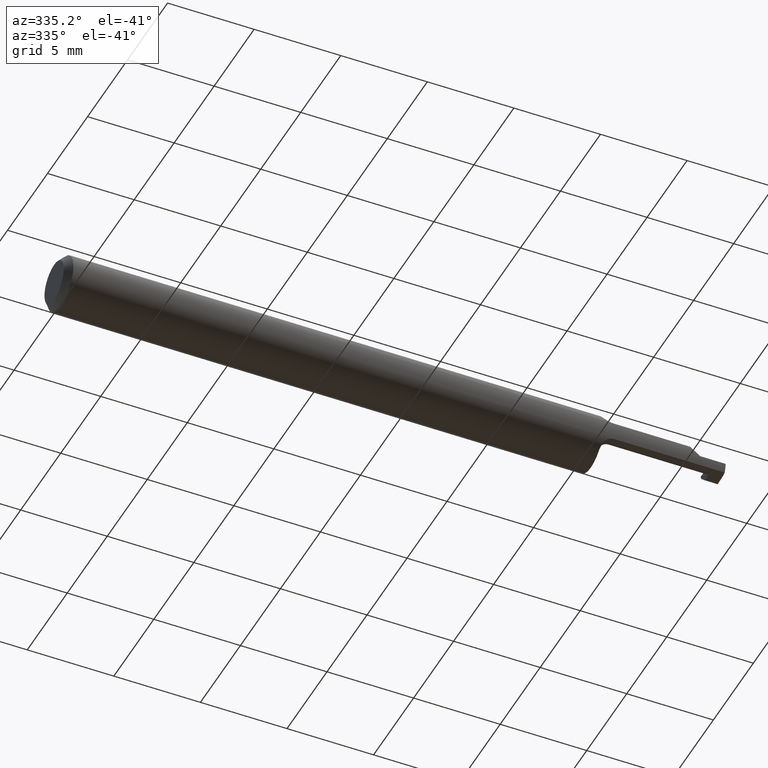
[diagram: clean part render]
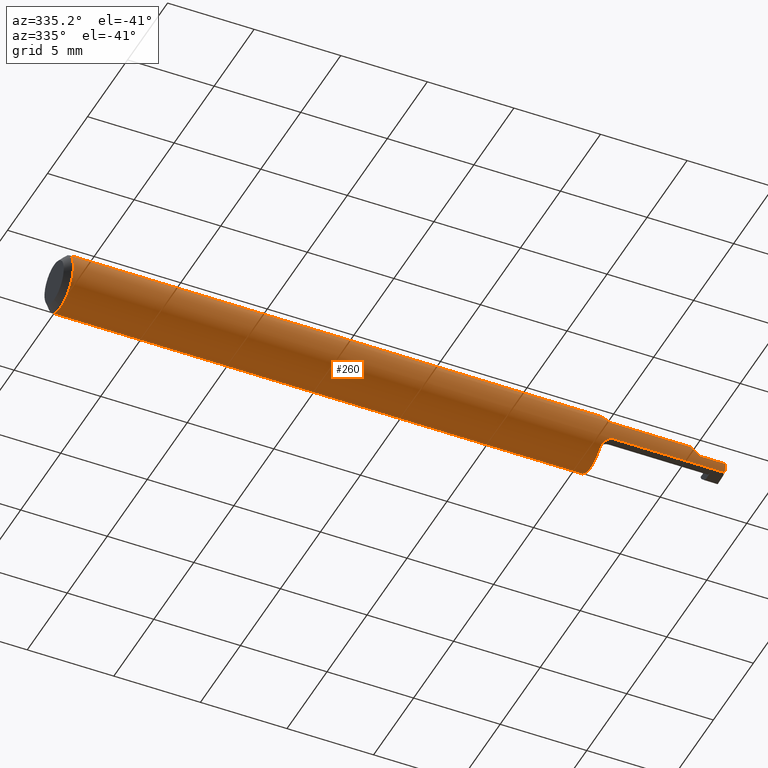
[diagram: same view with one face highlighted and labeled with its STEP entity id]
A machine part, auxiliary view. The second image highlights one B-rep face of the part: STEP entity #260.
In plain terms, the highlighted cylindrical surface (edge-blend (fillet) strip) has radius 1.5875 mm, axis along (-1, -0, -0).
Its self-contained STEP definition (entity closure, byte-faithful):
#15 = VERTEX_POINT ( 'NONE', #532 ) ;
#20 = VERTEX_POINT ( 'NONE', #645 ) ;
#28 = CARTESIAN_POINT ( 'NONE',  ( 1.244999999999999885, -0.05886363636363634022, -0.02100767274234791038 ) ) ;
#30 = ORIENTED_EDGE ( 'NONE', *, *, #691, .F. ) ;
#36 = EDGE_LOOP ( 'NONE', ( #122, #356, #631, #700, #344, #144, #30, #125, #392, #528, #513, #460, #327, #89, #622, #289 ) ) ;
#41 = DIRECTION ( 'NONE',  ( 1.000000000000000000, 0.000000000000000000, 0.000000000000000000 ) ) ;
#44 = VECTOR ( 'NONE', #675, 39.37007874015748143 ) ;
#50 = CARTESIAN_POINT ( 'NONE',  ( 1.497516218632006790, -0.05886363636363634716, -0.02100767274234790691 ) ) ;
#51 = CARTESIAN_POINT ( 'NONE',  ( 1.418992327257652342, -0.05886363636363636798, 0.02100767274234790691 ) ) ;
#55 = EDGE_CURVE ( 'NONE', #651, #138, #287, .T. ) ;
#61 = CARTESIAN_POINT ( 'NONE',  ( 1.356500000000000039, -0.05886363636363634716, -0.02100767274234790691 ) ) ;
#67 = B_SPLINE_CURVE_WITH_KNOTS ( 'NONE', 3,
 ( #659, #607, #603, #495, #112, #334 ),
 .UNSPECIFIED., .F., .F.,
 ( 4, 2, 4 ),
 ( 0.0003511697577770753263, 0.0007558328471938529497, 0.001160495936610630519 ),
 .UNSPECIFIED. ) ;
#71 = CARTESIAN_POINT ( 'NONE',  ( 1.497608834546441781, -0.06126942711424129134, -0.01426663133107638343 ) ) ;
#81 = CARTESIAN_POINT ( 'NONE',  ( 1.223742250285846378, -0.05260163983985807062, -0.03413395806547178668 ) ) ;
#87 = AXIS2_PLACEMENT_3D ( 'NONE', #466, #364, #314 ) ;
#88 = CARTESIAN_POINT ( 'NONE',  ( 1.496631624499075164, -0.06245432188394240552, -0.04998286624877785328 ) ) ;
#89 = ORIENTED_EDGE ( 'NONE', *, *, #335, .F. ) ;
#100 = EDGE_CURVE ( 'NONE', #611, #672, #650, .T. ) ;
#101 = CARTESIAN_POINT ( 'NONE',  ( 1.220000000000000195, 0.000000000000000000, 0.000000000000000000 ) ) ;
#111 = LINE ( 'NONE', #222, #511 ) ;
#112 = CARTESIAN_POINT ( 'NONE',  ( 1.239561149086641167, -0.05886363636377026087, 0.02100767274197276255 ) ) ;
#113 = AXIS2_PLACEMENT_3D ( 'NONE', #101, #320, #597 ) ;
#115 = CARTESIAN_POINT ( 'NONE',  ( 1.222018996248180223, -0.04950000000000041867, 0.03815756805667903234 ) ) ;
#116 = DIRECTION ( 'NONE',  ( 1.000000000000000000, 0.000000000000000000, 0.000000000000000000 ) ) ;
#120 = CARTESIAN_POINT ( 'NONE',  ( 0.01499999999999999944, 0.000000000000000000, -0.06250000000000000000 ) ) ;
#122 = ORIENTED_EDGE ( 'NONE', *, *, #139, .T. ) ;
#124 = DIRECTION ( 'NONE',  ( 0.000000000000000000, 0.000000000000000000, 1.000000000000000000 ) ) ;
#125 = ORIENTED_EDGE ( 'NONE', *, *, #422, .F. ) ;
#128 = LINE ( 'NONE', #237, #44 ) ;
#137 = CARTESIAN_POINT ( 'NONE',  ( 1.222018996248180889, -0.04950000000000030070, -0.03815756805667848417 ) ) ;
#138 = VERTEX_POINT ( 'NONE', #671 ) ;
#139 = EDGE_CURVE ( 'NONE', #416, #15, #525, .T. ) ;
#141 = DIRECTION ( 'NONE',  ( 0.000000000000000000, 0.000000000000000000, 1.000000000000000000 ) ) ;
#144 = ORIENTED_EDGE ( 'NONE', *, *, #213, .F. ) ;
#167 = CARTESIAN_POINT ( 'NONE',  ( 1.440000000000000169, -0.06250000000000000000, 7.469896857675718968E-18 ) ) ;
#173 = B_SPLINE_CURVE_WITH_KNOTS ( 'NONE', 3,
 ( #137, #572, #616, #345 ),
 .UNSPECIFIED., .F., .F.,
 ( 4, 4 ),
 ( 0.0008123906839535029569, 0.001133716745525399552 ),
 .UNSPECIFIED. ) ;
#174 = VERTEX_POINT ( 'NONE', #330 ) ;
#175 = CARTESIAN_POINT ( 'NONE',  ( 1.220000000000000195, -0.04093434343434342731, 0.04722954083620995586 ) ) ;
#193 = DIRECTION ( 'NONE',  ( -1.000000000000000000, -0.000000000000000000, -0.000000000000000000 ) ) ;
#198 = VERTEX_POINT ( 'NONE', #667 ) ;
#202 = B_SPLINE_CURVE_WITH_KNOTS ( 'NONE', 3,
 ( #28, #560, #678, #459, #81, #301 ),
 .UNSPECIFIED., .F., .F.,
 ( 4, 2, 4 ),
 ( 1.965804573220295593E-07, 0.0004062936322054086914, 0.0008123906839535029569 ),
 .UNSPECIFIED. ) ;
#204 = VECTOR ( 'NONE', #514, 39.37007874015748854 ) ;
#205 = DIRECTION ( 'NONE',  ( 0.000000000000000000, 0.000000000000000000, -1.000000000000000000 ) ) ;
#207 = CARTESIAN_POINT ( 'NONE',  ( 1.220000000000000195, 0.03391164991562636150, 0.05250000000000000500 ) ) ;
#213 = EDGE_CURVE ( 'NONE', #246, #174, #67, .T. ) ;
#216 = CARTESIAN_POINT ( 'NONE',  ( 0.01499999999999999944, -0.03391164991562636150, 0.05249999999999998418 ) ) ;
#220 = B_SPLINE_CURVE_WITH_KNOTS ( 'NONE', 3,
 ( #175, #393, #624, #349 ),
 .UNSPECIFIED., .F., .F.,
 ( 4, 4 ),
 ( 3.010157611159497900E-05, 0.0003511697577770753263 ),
 .UNSPECIFIED. ) ;
#222 = CARTESIAN_POINT ( 'NONE',  ( 0.000000000000000000, 0.03391164991562636150, 0.05249999999999998418 ) ) ;
#237 = CARTESIAN_POINT ( 'NONE',  ( 2.324973294346407873E-32, -0.06250000000000000000, 1.867474214418933224E-16 ) ) ;
#246 = VERTEX_POINT ( 'NONE', #115 ) ;
#260 = ADVANCED_FACE ( 'NONE', ( #408 ), #347, .T. ) ;
#281 = DIRECTION ( 'NONE',  ( -1.000000000000000000, -0.000000000000000000, -0.000000000000000000 ) ) ;
#286 = CARTESIAN_POINT ( 'NONE',  ( 1.497516218632006790, -0.05886363636363634716, -0.02100767274234790691 ) ) ;
#287 =( BOUNDED_CURVE ( )  B_SPLINE_CURVE ( 3, ( #598, #641, #371, #51 ),
 .UNSPECIFIED., .F., .F. ) 
 B_SPLINE_CURVE_WITH_KNOTS ( ( 4, 4 ),
 ( 4.712388980384689674, 5.055186081087965633 ),
 .UNSPECIFIED. ) 
 CURVE ( )  GEOMETRIC_REPRESENTATION_ITEM ( )  RATIONAL_B_SPLINE_CURVE ( ( 1.000000000000000000, 0.9902314620528109845, 0.9902314620528109845, 1.000000000000000000 ) ) 
 REPRESENTATION_ITEM ( '' )  );
#289 = ORIENTED_EDGE ( 'NONE', *, *, #643, .F. ) ;
#290 = EDGE_CURVE ( 'NONE', #322, #705, #202, .T. ) ;
#294 = CARTESIAN_POINT ( 'NONE',  ( 1.222018996248180889, -0.04950000000000030070, -0.03815756805667848417 ) ) ;
#301 = CARTESIAN_POINT ( 'NONE',  ( 1.222018996248180889, -0.04950000000000030070, -0.03815756805667848417 ) ) ;
#302 = VERTEX_POINT ( 'NONE', #307 ) ;
#307 = CARTESIAN_POINT ( 'NONE',  ( 0.01499999999999999771, 0.03391164991562633374, 0.05250000000000000500 ) ) ;
#312 = EDGE_CURVE ( 'NONE', #15, #476, #354, .T. ) ;
#314 = DIRECTION ( 'NONE',  ( 0.000000000000000000, 0.000000000000000000, 1.000000000000000000 ) ) ;
#319 = CIRCLE ( 'NONE', #113, 0.06250000000000000000 ) ;
#320 = DIRECTION ( 'NONE',  ( 1.000000000000000000, 0.000000000000000000, 0.000000000000000000 ) ) ;
#322 = VERTEX_POINT ( 'NONE', #394 ) ;
#327 = ORIENTED_EDGE ( 'NONE', *, *, #510, .F. ) ;
#330 = CARTESIAN_POINT ( 'NONE',  ( 1.244999999999999885, -0.05886363636363635410, 0.02100767274234789997 ) ) ;
#333 = EDGE_CURVE ( 'NONE', #302, #611, #374, .T. ) ;
#334 = CARTESIAN_POINT ( 'NONE',  ( 1.244999999999999885, -0.05886363636363635410, 0.02100767274234789997 ) ) ;
#335 = EDGE_CURVE ( 'NONE', #705, #198, #173, .T. ) ;
#336 = DIRECTION ( 'NONE',  ( -1.000000000000000000, -0.000000000000000000, -0.000000000000000000 ) ) ;
#341 = EDGE_CURVE ( 'NONE', #476, #651, #128, .T. ) ;
#343 = CARTESIAN_POINT ( 'NONE',  ( 1.497938178933349906, -0.06249997390100388295, -5.711719386472008966E-05 ) ) ;
#344 = ORIENTED_EDGE ( 'NONE', *, *, #663, .F. ) ;
#345 = CARTESIAN_POINT ( 'NONE',  ( 1.220000000000000195, -0.04093434343434342731, -0.04722954083620995586 ) ) ;
#347 = CYLINDRICAL_SURFACE ( 'NONE', #588, 0.06250000000000000000 ) ;
#349 = CARTESIAN_POINT ( 'NONE',  ( 1.222018996248180223, -0.04950000000000041867, 0.03815756805667903234 ) ) ;
#352 = VECTOR ( 'NONE', #441, 39.37007874015748143 ) ;
#354 = LINE ( 'NONE', #88, #204 ) ;
#356 = ORIENTED_EDGE ( 'NONE', *, *, #312, .T. ) ;
#364 = DIRECTION ( 'NONE',  ( -1.000000000000000000, -0.000000000000000000, -0.000000000000000000 ) ) ;
#371 = CARTESIAN_POINT ( 'NONE',  ( 1.425751565500938511, -0.06127592132893010940, 0.01424843449906176319 ) ) ;
#372 = VERTEX_POINT ( 'NONE', #630 ) ;
#374 = CIRCLE ( 'NONE', #417, 0.06250000000000000000 ) ;
#376 = CARTESIAN_POINT ( 'NONE',  ( 1.497939674599986448, -0.06249999999999997224, 1.283091683266196520E-19 ) ) ;
#384 = LINE ( 'NONE', #655, #352 ) ;
#385 = CIRCLE ( 'NONE', #684, 0.06250000000000000000 ) ;
#386 = CARTESIAN_POINT ( 'NONE',  ( 1.497750868070190311, -0.06249343286152817672, -0.007214590606946776584 ) ) ;
#387 = LINE ( 'NONE', #609, #594 ) ;
#392 = ORIENTED_EDGE ( 'NONE', *, *, #638, .F. ) ;
#393 = CARTESIAN_POINT ( 'NONE',  ( 1.219999999999999751, -0.04415449936013658011, 0.04443859757814033751 ) ) ;
#394 = CARTESIAN_POINT ( 'NONE',  ( 1.244999999999999885, -0.05886363636363634022, -0.02100767274234791038 ) ) ;
#408 = FACE_OUTER_BOUND ( 'NONE', #36, .T. ) ;
#416 = VERTEX_POINT ( 'NONE', #50 ) ;
#417 = AXIS2_PLACEMENT_3D ( 'NONE', #685, #682, #124 ) ;
#422 = EDGE_CURVE ( 'NONE', #20, #372, #385, .T. ) ;
#441 = DIRECTION ( 'NONE',  ( 1.000000000000000000, 0.000000000000000000, 0.000000000000000000 ) ) ;
#459 = CARTESIAN_POINT ( 'NONE',  ( 1.226604359762833329, -0.05495195758859174745, -0.02999640689160483834 ) ) ;
#460 = ORIENTED_EDGE ( 'NONE', *, *, #562, .F. ) ;
#463 = CARTESIAN_POINT ( 'NONE',  ( 0.000000000000000000, 0.000000000000000000, 0.000000000000000000 ) ) ;
#466 = CARTESIAN_POINT ( 'NONE',  ( 0.01499999999999999944, 0.000000000000000000, 0.000000000000000000 ) ) ;
#476 = VERTEX_POINT ( 'NONE', #376 ) ;
#479 = VERTEX_POINT ( 'NONE', #207 ) ;
#495 = CARTESIAN_POINT ( 'NONE',  ( 1.234393845276375190, -0.05804125348544831448, 0.02346417240968150589 ) ) ;
#510 = EDGE_CURVE ( 'NONE', #198, #479, #319, .T. ) ;
#511 = VECTOR ( 'NONE', #336, 39.37007874015748143 ) ;
#513 = ORIENTED_EDGE ( 'NONE', *, *, #333, .F. ) ;
#514 = DIRECTION ( 'NONE',  ( 0.02616100201822768243, -0.0009135623211514312192, 0.9996573249755575929 ) ) ;
#524 = CARTESIAN_POINT ( 'NONE',  ( 1.220000000000000195, 0.000000000000000000, 0.000000000000000000 ) ) ;
#525 =( BOUNDED_CURVE ( )  B_SPLINE_CURVE ( 3, ( #286, #71, #386, #343 ),
 .UNSPECIFIED., .F., .F. ) 
 B_SPLINE_CURVE_WITH_KNOTS ( ( 4, 4 ),
 ( 0.3009111819473466731, 0.6427944074215805603 ),
 .UNSPECIFIED. ) 
 CURVE ( )  GEOMETRIC_REPRESENTATION_ITEM ( )  RATIONAL_B_SPLINE_CURVE ( ( 1.000000000000000000, 0.9902833505010703030, 0.9902833505010703030, 1.000000000000000000 ) ) 
 REPRESENTATION_ITEM ( '' )  );
#528 = ORIENTED_EDGE ( 'NONE', *, *, #100, .F. ) ;
#532 = CARTESIAN_POINT ( 'NONE',  ( 1.497938178933349906, -0.06249997390100388295, -5.711719386472008966E-05 ) ) ;
#533 = VECTOR ( 'NONE', #281, 39.37007874015748143 ) ;
#560 = CARTESIAN_POINT ( 'NONE',  ( 1.239578158336205549, -0.05886363636363630553, -0.02100767274234796936 ) ) ;
#562 = EDGE_CURVE ( 'NONE', #479, #302, #111, .T. ) ;
#572 = CARTESIAN_POINT ( 'NONE',  ( 1.220655463982612599, -0.04704581396278030569, -0.04134126699320146009 ) ) ;
#588 = AXIS2_PLACEMENT_3D ( 'NONE', #463, #193, #141 ) ;
#594 = VECTOR ( 'NONE', #116, 39.37007874015748143 ) ;
#597 = DIRECTION ( 'NONE',  ( 0.000000000000000000, 0.000000000000000000, -1.000000000000000000 ) ) ;
#598 = CARTESIAN_POINT ( 'NONE',  ( 1.440000000000000169, -0.06250000000000000000, 7.469896857675718968E-18 ) ) ;
#603 = CARTESIAN_POINT ( 'NONE',  ( 1.226603424264791409, -0.05494411641100518939, 0.03000830826366650619 ) ) ;
#607 = CARTESIAN_POINT ( 'NONE',  ( 1.223743952264392920, -0.05260470318649954069, 0.03412998413143176341 ) ) ;
#609 = CARTESIAN_POINT ( 'NONE',  ( 1.356500000000000039, -0.05886363636363634716, 0.02100767274234790691 ) ) ;
#611 = VERTEX_POINT ( 'NONE', #120 ) ;
#616 = CARTESIAN_POINT ( 'NONE',  ( 1.220000000000000195, -0.04415400649228701235, -0.04443902475192726409 ) ) ;
#622 = ORIENTED_EDGE ( 'NONE', *, *, #290, .F. ) ;
#624 = CARTESIAN_POINT ( 'NONE',  ( 1.220650379969449695, -0.04703666338055137452, 0.04135313760874533701 ) ) ;
#630 = CARTESIAN_POINT ( 'NONE',  ( 1.220000000000000195, -0.04093434343434342731, 0.04722954083620995586 ) ) ;
#631 = ORIENTED_EDGE ( 'NONE', *, *, #341, .T. ) ;
#638 = EDGE_CURVE ( 'NONE', #672, #20, #384, .T. ) ;
#641 = CARTESIAN_POINT ( 'NONE',  ( 1.432823202637437676, -0.06250000000000001388, 0.007176797362562483025 ) ) ;
#643 = EDGE_CURVE ( 'NONE', #416, #322, #664, .T. ) ;
#645 = CARTESIAN_POINT ( 'NONE',  ( 1.220000000000000195, -0.03391164991562636150, 0.05250000000000000500 ) ) ;
#650 = CIRCLE ( 'NONE', #87, 0.06250000000000000000 ) ;
#651 = VERTEX_POINT ( 'NONE', #167 ) ;
#655 = CARTESIAN_POINT ( 'NONE',  ( 0.000000000000000000, -0.03391164991562636150, 0.05249999999999998418 ) ) ;
#659 = CARTESIAN_POINT ( 'NONE',  ( 1.222018996248180223, -0.04950000000000041867, 0.03815756805667903234 ) ) ;
#663 = EDGE_CURVE ( 'NONE', #174, #138, #387, .T. ) ;
#664 = LINE ( 'NONE', #61, #533 ) ;
#667 = CARTESIAN_POINT ( 'NONE',  ( 1.220000000000000195, -0.04093434343434342731, -0.04722954083620995586 ) ) ;
#671 = CARTESIAN_POINT ( 'NONE',  ( 1.418992327257652342, -0.05886363636363636798, 0.02100767274234790691 ) ) ;
#672 = VERTEX_POINT ( 'NONE', #216 ) ;
#675 = DIRECTION ( 'NONE',  ( -1.000000000000000000, -0.000000000000000000, -0.000000000000000000 ) ) ;
#678 = CARTESIAN_POINT ( 'NONE',  ( 1.234467156020459866, -0.05806285849851702124, -0.02341381071518031792 ) ) ;
#682 = DIRECTION ( 'NONE',  ( -1.000000000000000000, -0.000000000000000000, -0.000000000000000000 ) ) ;
#684 = AXIS2_PLACEMENT_3D ( 'NONE', #524, #41, #205 ) ;
#685 = CARTESIAN_POINT ( 'NONE',  ( 0.01499999999999999944, 0.000000000000000000, 0.000000000000000000 ) ) ;
#691 = EDGE_CURVE ( 'NONE', #372, #246, #220, .T. ) ;
#700 = ORIENTED_EDGE ( 'NONE', *, *, #55, .T. ) ;
#705 = VERTEX_POINT ( 'NONE', #294 ) ;